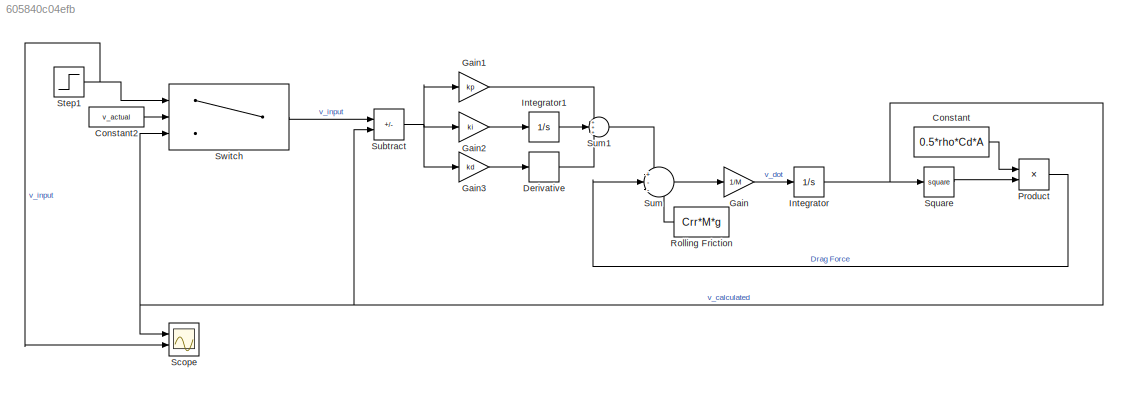
MODEL slx_605840c04efb
KIND model
CONFIG AbsTol = auto
CONFIG EnableMultiTasking = off
CONFIG FixedStep = auto
CONFIG MaxStep = auto
CONFIG MinStep = auto
CONFIG RelTol = 1e-3
CONFIG SampleTimeConstraint = Unconstrained
CONFIG SolverName = VariableStepAuto
CONFIG StartTime = 0.0
CONFIG StopTime = Sim_Time
BLOCK [Constant] Constant
  Value = 0.5*rho*Cd*A
BLOCK [Constant] Constant2
  Value = v_actual
BLOCK [Derivative] Derivative
BLOCK [Gain] Gain
  Gain = 1/M
BLOCK [Gain] Gain1
  Gain = kp
BLOCK [Gain] Gain2
  Gain = ki
BLOCK [Gain] Gain3
  Gain = kd
BLOCK [Integrator] Integrator
  InitialCondition = v_actual
  Ports = [1, 1]
BLOCK [Integrator] Integrator1
  Ports = [1, 1]
BLOCK [Product] Product
  Ports = [2, 1]
BLOCK [Constant] Rolling Friction
  Value = Crr*M*g
BLOCK [Scope] Scope
  Floating = off
  NumInputPorts = 2
  Ports = [2]
  ScopeSpecificationString = Simulink.scopes.TimeScopeBlockCfg('CurrentConfiguration', extmgr.ConfigurationSet(extmgr.Configuration('Core','General UI',true),extmgr.Configuration('Core','Source UI',true),extmgr.Configuration('Sources','WiredSimulink',true),extmgr.Configuration('Visuals','Time Domain',true,'SerializedDisplays',{struct('MinYLimReal','20.03579','MaxYLimReal','35.80758','YLabelReal','','MinYLimMag','20.03579','Ma...<+1493ch>
BLOCK [Math] Square
  Operator = square
  Ports = [1, 1]
BLOCK [Step] Step1
  After = v_desired
  Before = v_actual
  SampleTime = 0
BLOCK [Sum] Subtract
  IconShape = rectangular
  Inputs = +-
  Ports = [2, 1]
BLOCK [Sum] Sum
  Inputs = +--
  Ports = [3, 1]
BLOCK [Sum] Sum1
  Inputs = +++
  Ports = [3, 1]
BLOCK [Switch] Switch
  InputSameDT = off
  SaturateOnIntegerOverflow = off
  Threshold = v_min
LINE Constant2:1 -> Switch:2
LINE Constant:1 -> Product:1
LINE Derivative:1 -> Sum1:3
LINE Gain1:1 -> Sum1:1
LINE Gain2:1 -> Integrator1:1
LINE Gain3:1 -> Derivative:1
LINE Gain:1 -> Integrator:1
LINE Integrator1:1 -> Sum1:2
NET Integrator:1 -> Scope:1, Square:1, Subtract:2, Switch:3
LINE Product:1 -> Sum:2
LINE Rolling Friction:1 -> Sum:3
LINE Square:1 -> Product:2
NET Step1:1 -> Scope:2, Switch:1
NET Subtract:1 -> Gain1:1, Gain2:1, Gain3:1
LINE Sum1:1 -> Sum:1
LINE Sum:1 -> Gain:1
LINE Switch:1 -> Subtract:1
note: NET lines group one-source signal fan-out (src -> all destinations, sorted); 1:1 wires keep LINE
